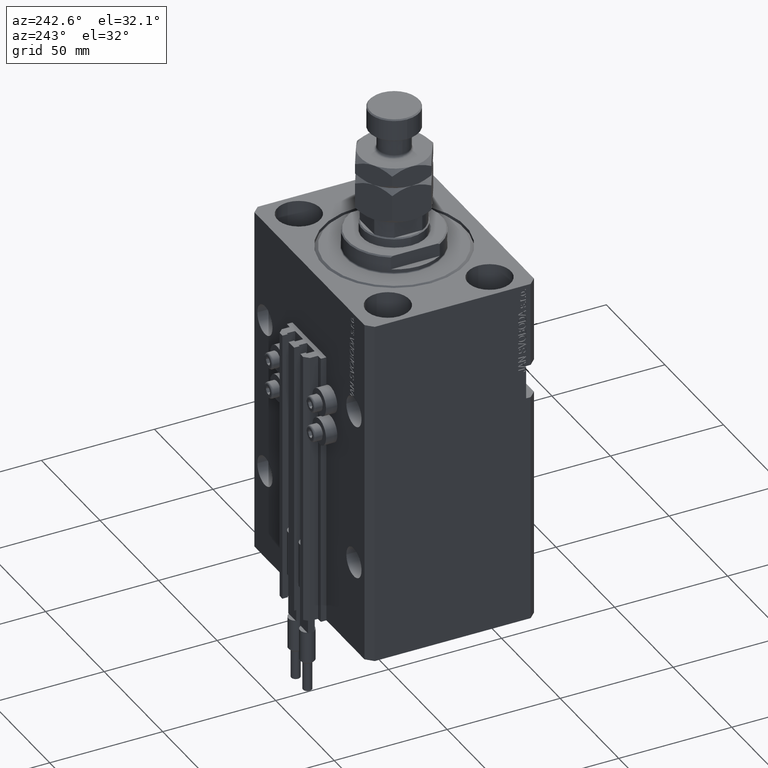
[diagram: clean part render]
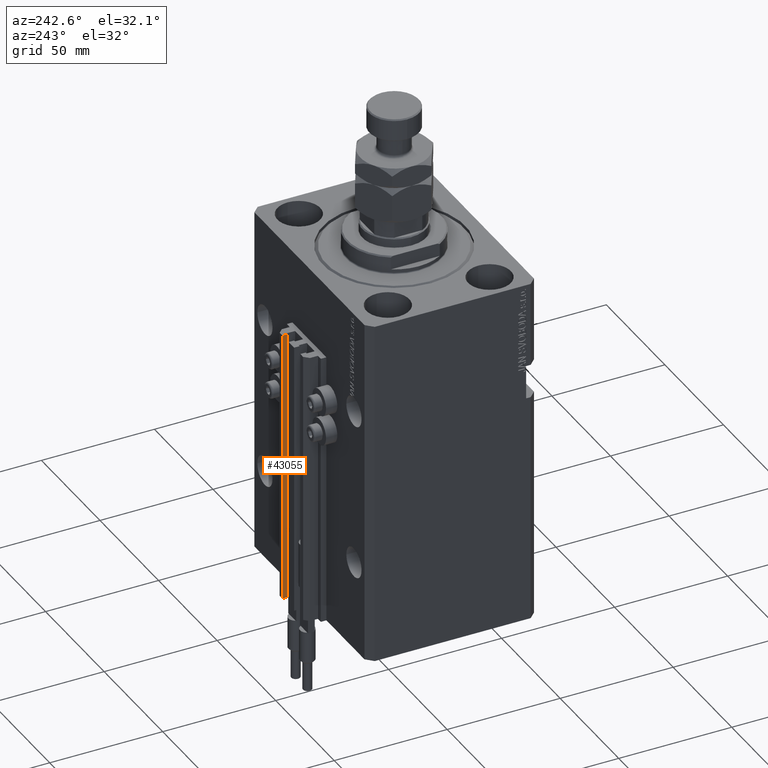
[diagram: same view with one face highlighted and labeled with its STEP entity id]
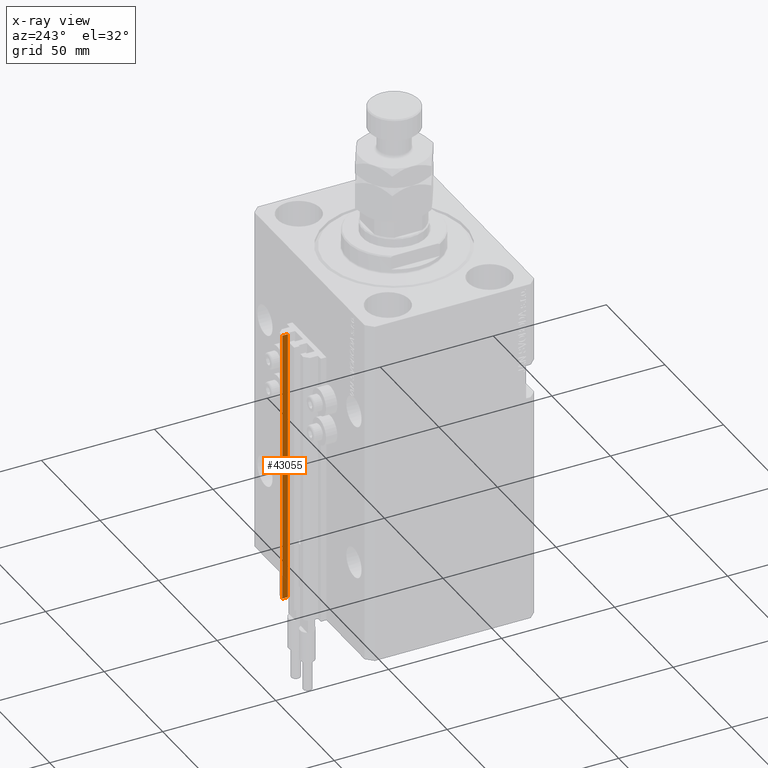
[diagram: x-ray of the same camera — body ghosted, the highlighted face saturated]
A machine part, auxiliary view. The second image highlights one B-rep face of the part: STEP entity #43055.
The next image is the same camera in x-ray: the body ghosted, the highlighted face saturated — about 0% of this face is hidden behind the body in this view.
In plain terms, the highlighted planar face has unit normal (-1, 0, 0).
Its self-contained STEP definition (entity closure, byte-faithful):
#61 = VECTOR ( 'NONE', #1758, 1000.000000000000000 ) ;
#1758 = DIRECTION ( 'NONE',  ( 0.000000000000000000, -1.000000000000000000, 0.000000000000000000 ) ) ;
#2805 = AXIS2_PLACEMENT_3D ( 'NONE', #26139, #14339, #29729 ) ;
#3249 = VECTOR ( 'NONE', #7359, 1000.000000000000000 ) ;
#4820 = ORIENTED_EDGE ( 'NONE', *, *, #36973, .T. ) ;
#5418 = ORIENTED_EDGE ( 'NONE', *, *, #12971, .F. ) ;
#7359 = DIRECTION ( 'NONE',  ( 0.000000000000000000, 0.000000000000000000, 1.000000000000000000 ) ) ;
#8384 = VERTEX_POINT ( 'NONE', #36987 ) ;
#12971 = EDGE_CURVE ( 'NONE', #18162, #27652, #26146, .T. ) ;
#13120 = DIRECTION ( 'NONE',  ( 0.000000000000000000, 0.000000000000000000, 1.000000000000000000 ) ) ;
#13672 = CARTESIAN_POINT ( 'NONE',  ( 7.649999999999998579, 45.50000000000002842, -155.0000000000000000 ) ) ;
#14339 = DIRECTION ( 'NONE',  ( -1.000000000000000000, 0.000000000000000000, 0.000000000000000000 ) ) ;
#14546 = LINE ( 'NONE', #14800, #3249 ) ;
#14800 = CARTESIAN_POINT ( 'NONE',  ( 7.649999999999998579, 45.50000000000002842, -155.0000000000000000 ) ) ;
#15090 = CARTESIAN_POINT ( 'NONE',  ( 7.649999999999998579, 45.50000000000002842, -33.00000000000000000 ) ) ;
#18162 = VERTEX_POINT ( 'NONE', #15090 ) ;
#21467 = EDGE_CURVE ( 'NONE', #23927, #18162, #14546, .T. ) ;
#23927 = VERTEX_POINT ( 'NONE', #13672 ) ;
#25362 = CARTESIAN_POINT ( 'NONE',  ( 7.649999999999998579, 43.10000000000002984, -33.00000000000000000 ) ) ;
#25597 = CARTESIAN_POINT ( 'NONE',  ( 7.649999999999998579, 45.50000000000002842, -155.0000000000000000 ) ) ;
#25639 = PLANE ( 'NONE',  #2805 ) ;
#26139 = CARTESIAN_POINT ( 'NONE',  ( 7.649999999999998579, 45.50000000000002842, -155.0000000000000000 ) ) ;
#26146 = LINE ( 'NONE', #37942, #38177 ) ;
#26646 = DIRECTION ( 'NONE',  ( 0.000000000000000000, -1.000000000000000000, 0.000000000000000000 ) ) ;
#27652 = VERTEX_POINT ( 'NONE', #25362 ) ;
#28515 = LINE ( 'NONE', #35002, #34820 ) ;
#29477 = FACE_OUTER_BOUND ( 'NONE', #43455, .T. ) ;
#29729 = DIRECTION ( 'NONE',  ( 0.000000000000000000, 0.000000000000000000, 1.000000000000000000 ) ) ;
#34820 = VECTOR ( 'NONE', #13120, 1000.000000000000000 ) ;
#35002 = CARTESIAN_POINT ( 'NONE',  ( 7.649999999999998579, 43.10000000000002984, -155.0000000000000000 ) ) ;
#36973 = EDGE_CURVE ( 'NONE', #23927, #8384, #40984, .T. ) ;
#36987 = CARTESIAN_POINT ( 'NONE',  ( 7.649999999999998579, 43.10000000000002984, -155.0000000000000000 ) ) ;
#37942 = CARTESIAN_POINT ( 'NONE',  ( 7.649999999999998579, 45.50000000000002842, -33.00000000000000000 ) ) ;
#38177 = VECTOR ( 'NONE', #26646, 1000.000000000000000 ) ;
#40438 = ORIENTED_EDGE ( 'NONE', *, *, #49529, .T. ) ;
#40984 = LINE ( 'NONE', #25597, #61 ) ;
#43055 = ADVANCED_FACE ( 'NONE', ( #29477 ), #25639, .T. ) ;
#43455 = EDGE_LOOP ( 'NONE', ( #5418, #50492, #4820, #40438 ) ) ;
#49529 = EDGE_CURVE ( 'NONE', #8384, #27652, #28515, .T. ) ;
#50492 = ORIENTED_EDGE ( 'NONE', *, *, #21467, .F. ) ;